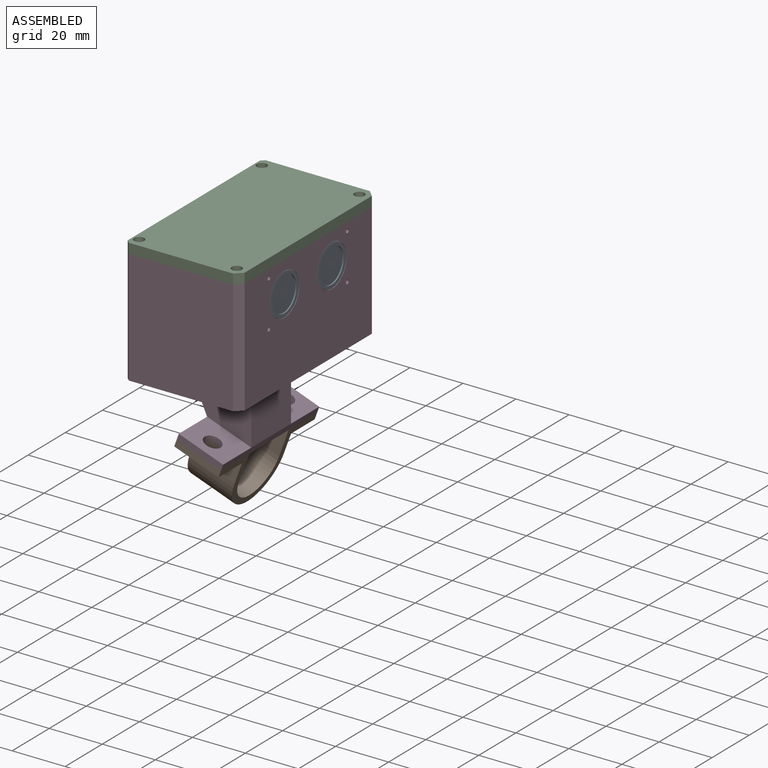
[diagram: assembled view]
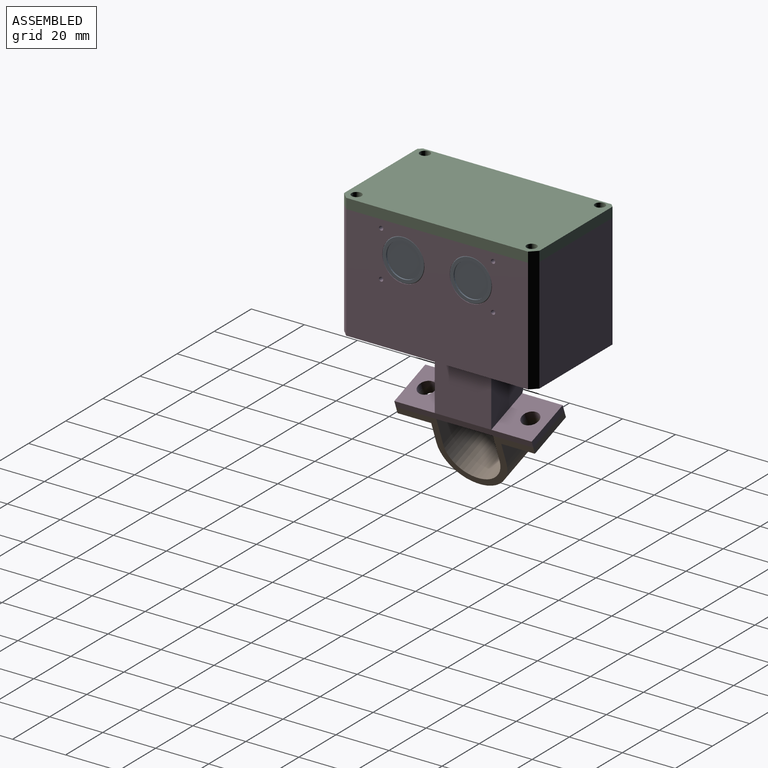
[diagram: assembled view, second angle]
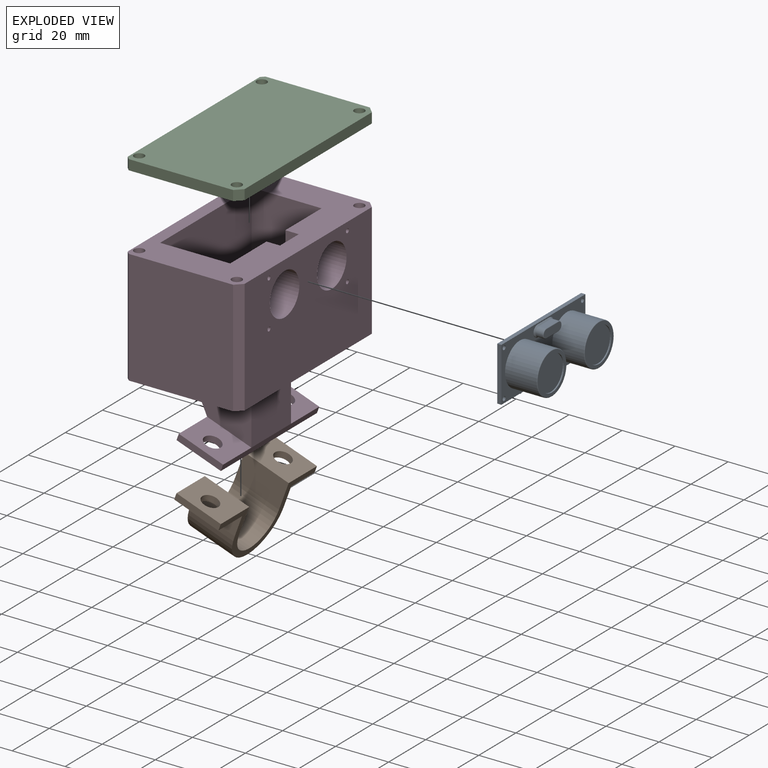
[diagram: exploded view]
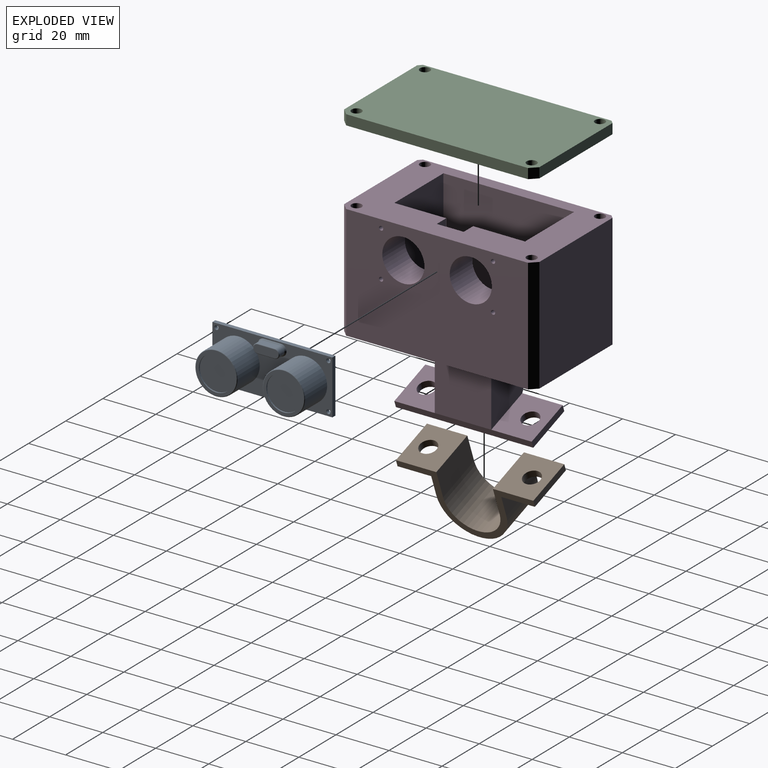
[diagram: exploded view, second angle]
ASSEMBLY  parts=4 mates=9
PART A: 123 faces, bbox 45.3x25.2x18.5 mm
  f0: plane 10.27x2.45mm, normal (0,0,-1), area 23.1mm2, adj f65,f66,f67,f68,f69,f70,f71,f72
  f1: plane 45.28x20.42mm, normal (0,0,-1), area 783.6mm2, adj f3,f4,f5,f6,f20,f21,f22,f23
  f2: plane 45.28x20.42mm, normal (0,0,1), area 478mm2, adj f3,f4,f5,f6,f7,f9,f11,f12
  f3: plane 45.28x1.57mm, normal (0,1,0), area 71.3mm2, adj f1,f2,f4,f6
  f4: plane 20.42x1.57mm, normal (-1,0,0), area 32.2mm2, adj f1,f2,f3,f5
  f5: plane 45.28x1.57mm, normal (0,-1,0), area 71.3mm2, adj f1,f2,f4,f6
  f6: plane 20.42x1.57mm, normal (1,0,0), area 32.2mm2, adj f1,f2,f3,f5
  f7: cylinder r=7.94mm len=15.89mm, axis (0,0,-1), area 593.3mm2, adj f2,f29
  f8: plane 15.38x15.38mm, normal (0,0,1), area 52.4mm2, adj f26,f29
  f9: cylinder r=7.94mm len=15.89mm, axis (0,0,-1), area 593.3mm2, adj f2,f28
  f10: plane 15.38x15.38mm, normal (0,0,1), area 52.4mm2, adj f24,f28
  f11: plane 6.41x0.13mm, normal (0,-1,0), area 0.8mm2, adj f2,f12,f14,f36
  f12: cylinder r=2.15mm len=4.31mm, axis (0,0,-1), area 0.9mm2, adj f2,f11,f13,f34
  f13: plane 6.41x0.13mm, normal (0,1,0), area 0.8mm2, adj f2,f12,f14,f35
  f14: cylinder r=2.15mm len=4.31mm, axis (0,0,-1), area 0.9mm2, adj f2,f11,f13,f37
  f15: plane 9.4x2.98mm, normal (0,0,1), area 26.1mm2, adj f30,f31,f32,f33
  f16: plane 6.41x2.67mm, normal (0,1,0), area 17.1mm2, adj f17,f19,f32,f35
  f17: cylinder r=1.75mm len=3.49mm, axis (0,0,-1), area 14.6mm2, adj f16,f18,f33,f34
  f18: plane 6.41x2.67mm, normal (0,-1,0), area 17.1mm2, adj f17,f19,f31,f36
  f19: cylinder r=1.75mm len=3.49mm, axis (0,0,-1), area 14.6mm2, adj f16,f18,f30,f37
  f20: cylinder r=0.79mm len=1.59mm, axis (0,0,1), area 7.9mm2, adj f1,f2
  f21: cylinder r=0.79mm len=1.59mm, axis (0,0,1), area 7.9mm2, adj f1,f2
  f22: cylinder r=0.79mm len=1.59mm, axis (0,0,1), area 7.9mm2, adj f1,f2
  f23: cylinder r=0.79mm len=1.59mm, axis (0,0,1), area 7.9mm2, adj f1,f2
  f24: cylinder r=6.52mm len=13.03mm, axis (0,0,1), area 20.8mm2, adj f10,f25
  f25: plane 13.03x13.03mm, normal (0,0,1), area 133.3mm2, adj f24
  f26: cylinder r=6.52mm len=13.03mm, axis (0,0,1), area 20.8mm2, adj f8,f27
  f27: plane 13.03x13.03mm, normal (0,0,1), area 133.3mm2, adj f26
  f28: torus R=7.69mm, axis (0,0,1), area 19.7mm2, adj f9,f10
  f29: torus R=7.69mm, axis (0,0,1), area 19.7mm2, adj f7,f8
  f30: torus R=1.49mm, axis (0,0,1), area 2.1mm2, adj f15,f19,f31,f32
  f31: cylinder r=0.25mm len=6.41mm, axis (-1,0,0), area 2.6mm2, adj f15,f18,f30,f33
  f32: cylinder r=0.25mm len=6.41mm, axis (1,0,0), area 2.6mm2, adj f15,f16,f30,f33
  f33: torus R=1.49mm, axis (0,0,1), area 2.1mm2, adj f15,f17,f31,f32
  f34: cone r=1.64mm half-angle=45deg, axis (0,0,-1), area 3.5mm2, adj f12,f17,f35,f36
  f35: plane 6.41x0.41mm, normal (0,0.71,0.71), area 3.7mm2, adj f13,f16,f34,f37
  f36: plane 6.41x0.41mm, normal (0,-0.71,0.71), area 3.7mm2, adj f11,f18,f34,f37
  f37: cone r=1.64mm half-angle=45deg, axis (0,0,-1), area 3.5mm2, adj f14,f19,f35,f36
  f38: plane 3.91x1.42mm, normal (1,0,0), area 5.6mm2, adj f1,f39,f41,f57
  f39: plane 8.84x1.42mm, normal (0,-1,0), area 12.6mm2, adj f1,f38,f40,f59
  f40: plane 3.91x1.42mm, normal (-1,0,0), area 5.6mm2, adj f1,f39,f41,f60
  f41: plane 8.84x1.42mm, normal (0,1,0), area 12.6mm2, adj f1,f38,f40,f58
  f42: plane 8.59x3.66mm, normal (0,0,-1), area 31.4mm2, adj f57,f58,f59,f60
  f43: plane 3.91x1.42mm, normal (1,0,0), area 5.6mm2, adj f1,f44,f46,f53
  f44: plane 8.84x1.42mm, normal (0,-1,0), area 12.6mm2, adj f1,f43,f45,f55
  f45: plane 3.91x1.42mm, normal (-1,0,0), area 5.6mm2, adj f1,f44,f46,f56
  f46: plane 8.84x1.42mm, normal (0,1,0), area 12.6mm2, adj f1,f43,f45,f54
  f47: plane 8.59x3.66mm, normal (0,0,-1), area 31.4mm2, adj f53,f54,f55,f56
  f48: plane 10.22x1.42mm, normal (1,0,0), area 14.5mm2, adj f1,f49,f51,f61
  f49: plane 3.81x1.42mm, normal (0,-1,0), area 5.4mm2, adj f1,f48,f50,f63
  f50: plane 10.22x1.42mm, normal (-1,0,0), area 14.5mm2, adj f1,f49,f51,f64
  f51: plane 3.81x1.42mm, normal (0,1,0), area 5.4mm2, adj f1,f48,f50,f62
  f52: plane 9.97x3.56mm, normal (0,0,-1), area 35.5mm2, adj f61,f62,f63,f64
  f53: plane 3.91x0.13mm, normal (0.71,0,-0.71), area 0.7mm2, adj f43,f47,f54,f55
  f54: plane 8.84x0.13mm, normal (0,0.71,-0.71), area 1.6mm2, adj f46,f47,f53,f56
  f55: plane 8.84x0.13mm, normal (0,-0.71,-0.71), area 1.6mm2, adj f44,f47,f53,f56
  f56: plane 3.91x0.13mm, normal (-0.71,0,-0.71), area 0.7mm2, adj f45,f47,f54,f55
  f57: plane 3.91x0.13mm, normal (0.71,0,-0.71), area 0.7mm2, adj f38,f42,f58,f59
  f58: plane 8.84x0.13mm, normal (0,0.71,-0.71), area 1.6mm2, adj f41,f42,f57,f60
  f59: plane 8.84x0.13mm, normal (0,-0.71,-0.71), area 1.6mm2, adj f39,f42,f57,f60
  f60: plane 3.91x0.13mm, normal (-0.71,0,-0.71), area 0.7mm2, adj f40,f42,f58,f59
  f61: plane 10.22x0.13mm, normal (0.71,0,-0.71), area 1.8mm2, adj f48,f52,f62,f63
  f62: plane 3.81x0.13mm, normal (0,0.71,-0.71), area 0.7mm2, adj f51,f52,f61,f64
  f63: plane 3.81x0.13mm, normal (0,-0.71,-0.71), area 0.7mm2, adj f49,f52,f61,f64
  f64: plane 10.22x0.13mm, normal (-0.71,0,-0.71), area 1.8mm2, adj f50,f52,f62,f63
  f65: cylinder r=0.25mm len=2.65mm, axis (0,0,1), area 1.1mm2, adj f0,f1,f66,f90
  f66: cylinder r=0.25mm len=2.65mm, axis (0,0,1), area 1.1mm2, adj f0,f1,f65,f67
  f67: plane 2.65x2.06mm, normal (0,1,0), area 5.5mm2, adj f0,f1,f66,f68
  f68: cylinder r=0.25mm len=2.65mm, axis (0,0,1), area 1.1mm2, adj f0,f1,f67,f69
  f69: cylinder r=0.25mm len=2.65mm, axis (0,0,1), area 1.1mm2, adj f0,f1,f68,f70
  f70: plane 2.65x2.06mm, normal (0,1,0), area 5.5mm2, adj f0,f1,f69,f71
  f71: cylinder r=0.25mm len=2.65mm, axis (0,0,1), area 1.1mm2, adj f0,f1,f70,f72
  f72: cylinder r=0.25mm len=2.65mm, axis (0,0,1), area 1.1mm2, adj f0,f1,f71,f73
  f73: plane 2.65x2.06mm, normal (0,1,0), area 5.5mm2, adj f0,f1,f72,f74
  f74: cylinder r=0.25mm len=2.65mm, axis (0,0,1), area 1.1mm2, adj f0,f1,f73,f75
  f75: plane 2.65x1.94mm, normal (1,0,0), area 5.2mm2, adj f0,f1,f74,f76
  f76: cylinder r=0.25mm len=2.65mm, axis (0,0,1), area 1.1mm2, adj f0,f1,f75,f77
  f77: plane 2.65x2.06mm, normal (0,-1,0), area 5.5mm2, adj f0,f1,f76,f78
  f78: cylinder r=0.25mm len=2.65mm, axis (0,0,1), area 1.1mm2, adj f0,f1,f77,f79
  f79: cylinder r=0.25mm len=2.65mm, axis (0,0,1), area 1.1mm2, adj f0,f1,f78,f80
  f80: plane 2.65x2.06mm, normal (0,-1,0), area 5.5mm2, adj f0,f1,f79,f81
  f81: cylinder r=0.25mm len=2.65mm, axis (0,0,1), area 1.1mm2, adj f0,f1,f80,f82
  f82: cylinder r=0.25mm len=2.65mm, axis (0,0,1), area 1.1mm2, adj f0,f1,f81,f83
  f83: plane 2.65x2.06mm, normal (0,-1,0), area 5.5mm2, adj f0,f1,f82,f84
  f84: cylinder r=0.25mm len=2.65mm, axis (0,0,1), area 1.1mm2, adj f0,f1,f83,f85
  f85: cylinder r=0.25mm len=2.65mm, axis (0,0,1), area 1.1mm2, adj f0,f1,f84,f86
  f86: plane 2.65x2.06mm, normal (0,-1,0), area 5.5mm2, adj f0,f1,f85,f87
  f87: cylinder r=0.25mm len=2.65mm, axis (0,0,1), area 1.1mm2, adj f0,f1,f86,f88
  f88: plane 2.65x1.94mm, normal (-1,0,0), area 5.2mm2, adj f0,f1,f87,f89
  f89: cylinder r=0.25mm len=2.65mm, axis (0,0,1), area 1.1mm2, adj f0,f1,f88,f90
  f90: plane 2.65x2.06mm, normal (0,1,0), area 5.5mm2, adj f0,f1,f65,f89
  f91: plane 6.85x2.12mm, normal (1,0,0), area 5.6mm2, adj f0,f92,f94,f95,f117,f118,f119
  f92: plane 1.87x0.67mm, normal (0,-1,0), area 1.3mm2, adj f0,f91,f93,f119
  f93: plane 6.85x2.12mm, normal (-1,0,0), area 5.6mm2, adj f0,f92,f94,f95,f117,f118,f119
  f94: plane 1.45x0.67mm, normal (0,1,0), area 1mm2, adj f0,f91,f93,f117
  f95: plane 6.59x0.67mm, normal (0,0,-1), area 4.4mm2, adj f91,f93,f118,f119
  f96: plane 6.85x2.12mm, normal (1,0,0), area 5.6mm2, adj f0,f97,f99,f100,f115,f116,f120
  f97: plane 1.87x0.67mm, normal (0,-1,0), area 1.3mm2, adj f0,f96,f98,f120
  f98: plane 6.85x2.12mm, normal (-1,0,0), area 5.6mm2, adj f0,f97,f99,f100,f115,f116,f120
  f99: plane 1.45x0.67mm, normal (0,1,0), area 1mm2, adj f0,f96,f98,f115
  f100: plane 6.59x0.67mm, normal (0,0,-1), area 4.4mm2, adj f96,f98,f116,f120
  f101: plane 6.85x2.12mm, normal (1,0,0), area 5.6mm2, adj f0,f102,f104,f105,f113,f114,f121
  f102: plane 1.87x0.67mm, normal (0,-1,0), area 1.3mm2, adj f0,f101,f103,f121
  f103: plane 6.85x2.12mm, normal (-1,0,0), area 5.6mm2, adj f0,f102,f104,f105,f113,f114,f121
  f104: plane 1.45x0.67mm, normal (0,1,0), area 1mm2, adj f0,f101,f103,f113
  f105: plane 6.59x0.67mm, normal (0,0,-1), area 4.4mm2, adj f101,f103,f114,f121
  f106: plane 6.85x2.12mm, normal (1,0,0), area 5.6mm2, adj f0,f107,f109,f110,f111,f112,f122
  f107: plane 1.87x0.67mm, normal (0,-1,0), area 1.3mm2, adj f0,f106,f108,f122
  f108: plane 6.85x2.12mm, normal (-1,0,0), area 5.6mm2, adj f0,f107,f109,f110,f111,f112,f122
  f109: plane 1.45x0.67mm, normal (0,1,0), area 1mm2, adj f0,f106,f108,f111
  f110: plane 6.59x0.67mm, normal (0,0,-1), area 4.4mm2, adj f106,f108,f112,f122
  f111: plane 6.17x0.67mm, normal (0,0,1), area 4.2mm2, adj f106,f108,f109,f112
  f112: plane 0.67x0.67mm, normal (0,1,0), area 0.5mm2, adj f106,f108,f110,f111
  f113: plane 6.17x0.67mm, normal (0,0,1), area 4.2mm2, adj f101,f103,f104,f114
  f114: plane 0.67x0.67mm, normal (0,1,0), area 0.5mm2, adj f101,f103,f105,f113
  f115: plane 6.17x0.67mm, normal (0,0,1), area 4.2mm2, adj f96,f98,f99,f116
  f116: plane 0.67x0.67mm, normal (0,1,0), area 0.5mm2, adj f96,f98,f100,f115
  f117: plane 6.17x0.67mm, normal (0,0,1), area 4.2mm2, adj f91,f93,f94,f118
  f118: plane 0.67x0.67mm, normal (0,1,0), area 0.5mm2, adj f91,f93,f95,f117
  f119: cylinder r=0.25mm len=0.67mm, axis (1,0,0), area 0.3mm2, adj f91,f92,f93,f95
  f120: cylinder r=0.25mm len=0.67mm, axis (1,0,0), area 0.3mm2, adj f96,f97,f98,f100
  f121: cylinder r=0.25mm len=0.67mm, axis (1,0,0), area 0.3mm2, adj f101,f102,f103,f105
  f122: cylinder r=0.25mm len=0.67mm, axis (1,0,0), area 0.3mm2, adj f106,f107,f108,f110
PART B: 16 faces, bbox 51.8x23.9x17.8 mm
  f0: plane 17.78x12.7mm, normal (0,-1,0), area 194.1mm2, adj f1,f11,f12,f13,f14
  f1: plane 17.78x8.13mm, normal (-1,0,0), area 144.5mm2, adj f0,f2,f12,f13
  f2: cylinder r=13.21mm len=26.42mm, axis (0,0,-1), area 737.8mm2, adj f1,f3,f12,f13
  f3: plane 17.78x8.13mm, normal (1,0,0), area 144.5mm2, adj f2,f4,f12,f13
  f4: plane 17.78x12.7mm, normal (0,-1,0), area 194.1mm2, adj f3,f5,f12,f13,f15
  f5: plane 17.78x2.54mm, normal (1,0,0), area 45.2mm2, adj f4,f6,f12,f13
  f6: plane 17.78x15.24mm, normal (0,1,0), area 239.3mm2, adj f5,f7,f12,f13,f15
  f7: plane 17.78x10.67mm, normal (-1,0,0), area 189.7mm2, adj f6,f8,f12,f13
  f8: cylinder r=10.67mm len=21.34mm, axis (0,0,-1), area 595.9mm2, adj f7,f9,f12,f13
  f9: plane 17.78x10.67mm, normal (1,0,0), area 189.7mm2, adj f8,f10,f12,f13
  f10: plane 17.78x15.24mm, normal (0,1,0), area 239.3mm2, adj f9,f11,f12,f13,f14
  f11: plane 17.78x2.54mm, normal (-1,0,0), area 45.2mm2, adj f0,f10,f12,f13
  f12: plane 51.82x23.88mm, normal (0,0,1), area 214mm2, adj f0,f1,f2,f3,f4,f5,f6,f7
  f13: plane 51.82x23.88mm, normal (0,0,-1), area 214mm2, adj f0,f1,f2,f3,f4,f5,f6,f7
  f14: cylinder r=3.17mm len=6.35mm, axis (0,-1,0), area 50.7mm2, adj f0,f10
  f15: cylinder r=3.17mm len=6.35mm, axis (0,-1,0), area 50.7mm2, adj f4,f6
PART C: 14 faces, bbox 43.2x73.7x3.8 mm
  f0: plane 39.37x3.81mm, normal (0,1,0), area 150mm2, adj f8,f9,f10,f12
  f1: plane 68.58x3.81mm, normal (-1,0,0), area 261.3mm2, adj f8,f9,f12,f13
  f2: plane 39.37x3.81mm, normal (0,-1,0), area 150mm2, adj f8,f9,f11,f13
  f3: cylinder r=1.91mm len=3.81mm, axis (0,0,-1), area 45.6mm2, adj f8,f9
  f4: cylinder r=1.91mm len=3.81mm, axis (0,0,-1), area 45.6mm2, adj f8,f9
  f5: cylinder r=1.91mm len=3.81mm, axis (0,0,-1), area 45.6mm2, adj f8,f9
  f6: cylinder r=1.91mm len=3.81mm, axis (0,0,-1), area 45.6mm2, adj f8,f9
  f7: plane 71.12x3.81mm, normal (1,0,0), area 271mm2, adj f8,f9,f10,f11
  f8: plane 73.66x43.18mm, normal (0,0,1), area 3127mm2, adj f0,f1,f2,f3,f4,f5,f6,f7
  f9: plane 73.66x43.18mm, normal (0,0,-1), area 3127mm2, adj f0,f1,f2,f3,f4,f5,f6,f7
  f10: plane 3.81x1.27mm, normal (0.71,0.71,0), area 6.8mm2, adj f0,f7,f8,f9
  f11: plane 3.81x1.27mm, normal (0.71,-0.71,0), area 6.8mm2, adj f2,f7,f8,f9
  f12: plane 3.81x2.54mm, normal (-0.71,0.71,0), area 13.7mm2, adj f0,f1,f8,f9
  f13: plane 3.81x2.54mm, normal (-0.71,-0.71,0), area 13.7mm2, adj f1,f2,f8,f9
PART D: 47 faces, bbox 43.2x73.7x71 mm
  f0: plane 73.66x43.18mm, normal (0,0,-1), area 2630.6mm2, adj f2,f3,f4,f16,f25,f26,f27,f28
  f1: plane 73.66x43.18mm, normal (0,0,1), area 1773.7mm2, adj f2,f3,f4,f5,f6,f7,f8,f16
  f2: plane 43.18x39.37mm, normal (0,1,0), area 1700mm2, adj f0,f1,f26,f27
  f3: plane 43.18x39.37mm, normal (0,-1,0), area 1700mm2, adj f0,f1,f25,f28
  f4: plane 68.58x43.18mm, normal (1,0,0), area 2556.9mm2, adj f0,f1,f10,f11,f12,f13,f14,f15
  f5: plane 38.1x26.42mm, normal (0,1,0), area 1006.4mm2, adj f1,f6,f8,f9
  f6: plane 49.28x38.1mm, normal (1,0,0), area 1845.7mm2, adj f1,f5,f7,f9,f46
  f7: plane 38.1x26.42mm, normal (0,-1,0), area 1006.4mm2, adj f1,f6,f8,f9
  f8: plane 49.28x38.1mm, normal (-1,0,0), area 1416.2mm2, adj f1,f5,f7,f9,f10,f11,f12,f13
  f9: plane 49.28x26.42mm, normal (0,0,1), area 1301.7mm2, adj f5,f6,f7,f8
  f10: cylinder r=7.94mm len=15.89mm, axis (1,0,0), area 608.5mm2, adj f4,f8
  f11: cylinder r=0.79mm len=12.19mm, axis (1,0,0), area 60.8mm2, adj f4,f8
  f12: cylinder r=7.94mm len=15.89mm, axis (1,0,0), area 608.5mm2, adj f4,f8
  f13: cylinder r=0.79mm len=12.19mm, axis (1,0,0), area 60.8mm2, adj f4,f8
  f14: cylinder r=0.79mm len=12.19mm, axis (1,0,0), area 60.8mm2, adj f4,f8
  f15: cylinder r=0.79mm len=12.19mm, axis (1,0,0), area 60.8mm2, adj f4,f8
  f16: plane 71.12x43.18mm, normal (-1,0,0), area 3039.3mm2, adj f0,f1,f25,f26,f46
  f17: cylinder r=1.91mm len=12.7mm, axis (0,0,1), area 152mm2, adj f1,f18
  f18: plane 3.81x3.81mm, normal (0,0,1), area 11.4mm2, adj f17
  f19: cylinder r=1.91mm len=12.7mm, axis (0,0,1), area 152mm2, adj f1,f20
  f20: plane 3.81x3.81mm, normal (0,0,1), area 11.4mm2, adj f19
  f21: cylinder r=1.91mm len=12.7mm, axis (0,0,1), area 152mm2, adj f1,f22
  f22: plane 3.81x3.81mm, normal (0,0,1), area 11.4mm2, adj f21
  f23: cylinder r=1.91mm len=12.7mm, axis (0,0,1), area 152mm2, adj f1,f24
  f24: plane 3.81x3.81mm, normal (0,0,1), area 11.4mm2, adj f23
  f25: plane 43.18x1.27mm, normal (-0.71,-0.71,0), area 77.6mm2, adj f0,f1,f3,f16
  f26: plane 43.18x1.27mm, normal (-0.71,0.71,0), area 77.6mm2, adj f0,f1,f2,f16
  f27: plane 43.18x2.54mm, normal (0.71,0.71,0), area 155.1mm2, adj f0,f1,f2,f4
  f28: plane 43.18x2.54mm, normal (0.71,-0.71,0), area 155.1mm2, adj f0,f1,f3,f4
  f29: plane 25.4x25.4mm, normal (0,-1,0), area 457.5mm2, adj f0,f31,f32,f39
  f30: plane 25.4x25.4mm, normal (0,1,0), area 457.5mm2, adj f0,f31,f38,f39
  f31: plane 25.4x21.34mm, normal (1,0,0), area 541.9mm2, adj f0,f29,f30,f33
  f32: plane 16.71x15.24mm, normal (0.34,0,0.94), area 239.3mm2, adj f29,f33,f34,f35,f41
  f33: plane 51.82x2.39mm, normal (0.94,0,-0.34), area 131.6mm2, adj f31,f32,f34,f36,f37,f38
  f34: plane 17.58x8.47mm, normal (0,-1,0), area 45.2mm2, adj f32,f33,f35,f37
  f35: plane 51.82x2.39mm, normal (-0.94,0,0.34), area 131.6mm2, adj f32,f34,f36,f37,f38,f39
  f36: plane 17.58x8.47mm, normal (0,1,0), area 45.2mm2, adj f33,f35,f37,f38
  f37: plane 51.82x16.71mm, normal (-0.34,0,-0.94), area 858mm2, adj f33,f34,f35,f36,f40,f41
  f38: plane 16.71x15.24mm, normal (0.34,0,0.94), area 239.3mm2, adj f30,f33,f35,f36,f40
  f39: plane 21.34x19.32mm, normal (-0.91,0,-0.41), area 452mm2, adj f0,f29,f30,f35
  f40: cylinder r=3.17mm len=6.84mm, axis (-0.34,0,-0.94), area 50.7mm2, adj f37,f38
  f41: cylinder r=3.17mm len=6.84mm, axis (-0.34,0,-0.94), area 50.7mm2, adj f32,f37
  f42: plane 5.59x5.08mm, normal (0,1,0), area 28.4mm2, adj f1,f8,f43,f45
  f43: plane 10.16x5.59mm, normal (-1,0,0), area 56.8mm2, adj f1,f42,f44,f45
  f44: plane 5.59x5.08mm, normal (0,-1,0), area 28.4mm2, adj f1,f8,f43,f45
  f45: plane 10.16x5.08mm, normal (0,0,1), area 51.6mm2, adj f8,f42,f43,f44
  f46: cylinder r=3.17mm len=6.35mm, axis (-1,0,0), area 91.2mm2, adj f6,f16
PLACE A rot(axis=(-0.58,0.58,-0.58),120deg) t=(-31.23,-13.1,19.86)mm
PLACE B rot(axis=(0.5,-0.5,-0.71),109.2deg) t=(-27.19,-7.71,-5.47)mm
PLACE C rot(axis=(0,0,-1),180deg) t=(-97.55,46.16,51.46)mm
PLACE D t=(-31.03,-11.75,8.28)mm
MATE cylindrical A.f9 <-> D.f10  axis (1,0,0) through (-18.02,-16.83,39.73)mm
MATE planar A.f2 <-> D.f8  axis (1,0,0) through (-29.65,-4.11,39.06)mm
MATE cylindrical D.f41 <-> B.f15  axis (-0.34,0,-0.94) through (-40.22,-23.67,-15.27)mm
MATE cylindrical A.f7 <-> D.f12  axis (-1,0,0) through (-23.71,8.61,39.73)mm
MATE cylindrical C.f6 <-> D.f17  axis (0,0,-1) through (-21.27,28.91,51.46)mm
MATE planar C.f9 <-> D.f1  axis (0,0,-1) through (-39.07,-4.11,51.46)mm
MATE cylindrical B.f14 <-> D.f40  axis (-0.34,0,-0.94) through (-41.52,15.45,-18.85)mm
MATE cylindrical C.f4 <-> D.f21  axis (0,0,1) through (-58.1,-37.13,55.27)mm
MATE planar B.f10 <-> D.f37  axis (0.34,0,0.94) through (-40.65,14.01,-16.46)mm
